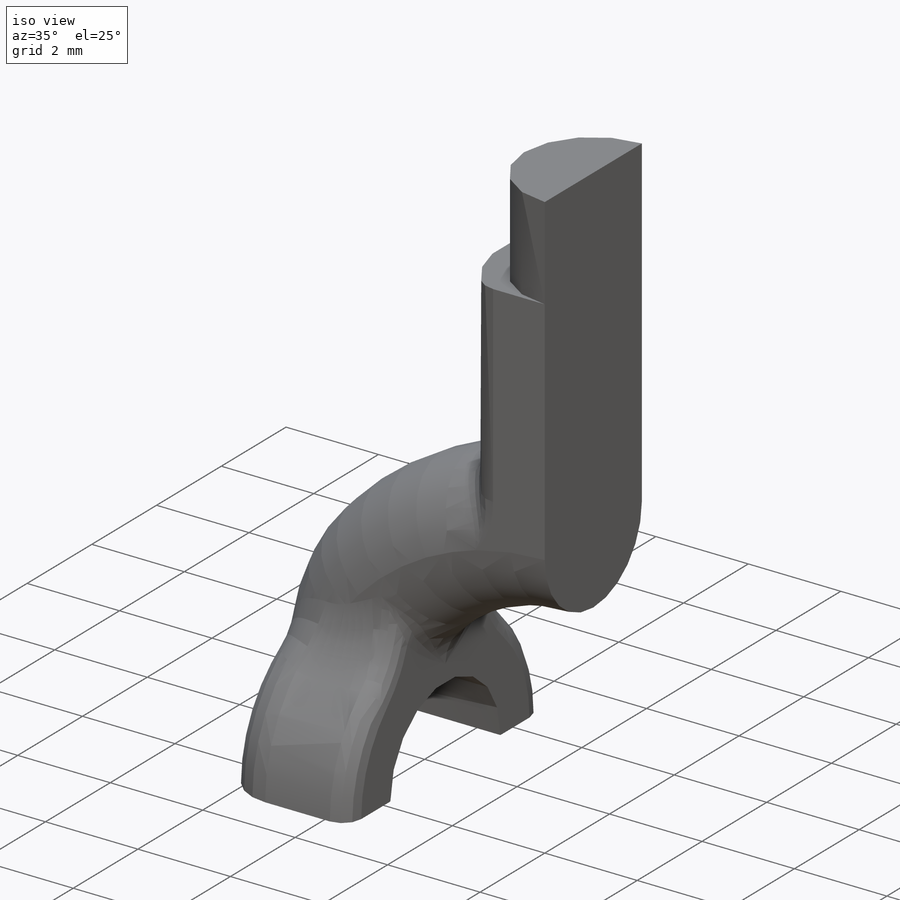
[diagram: iso view]
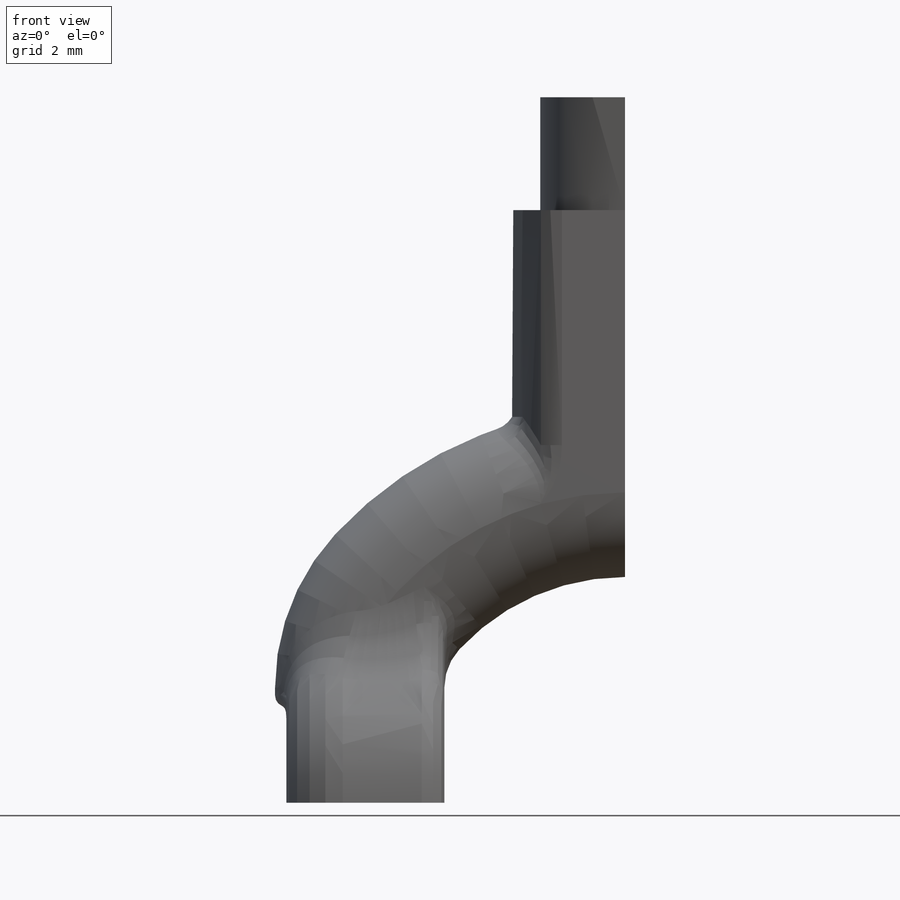
[diagram: front view]
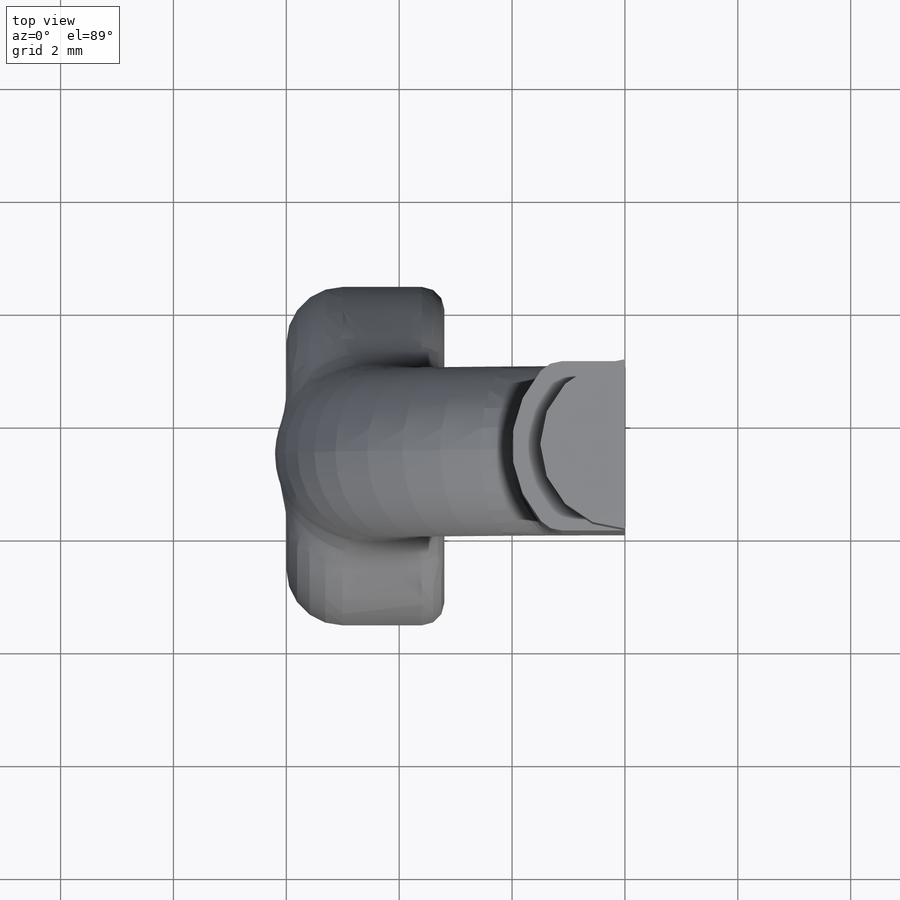
[diagram: top view]
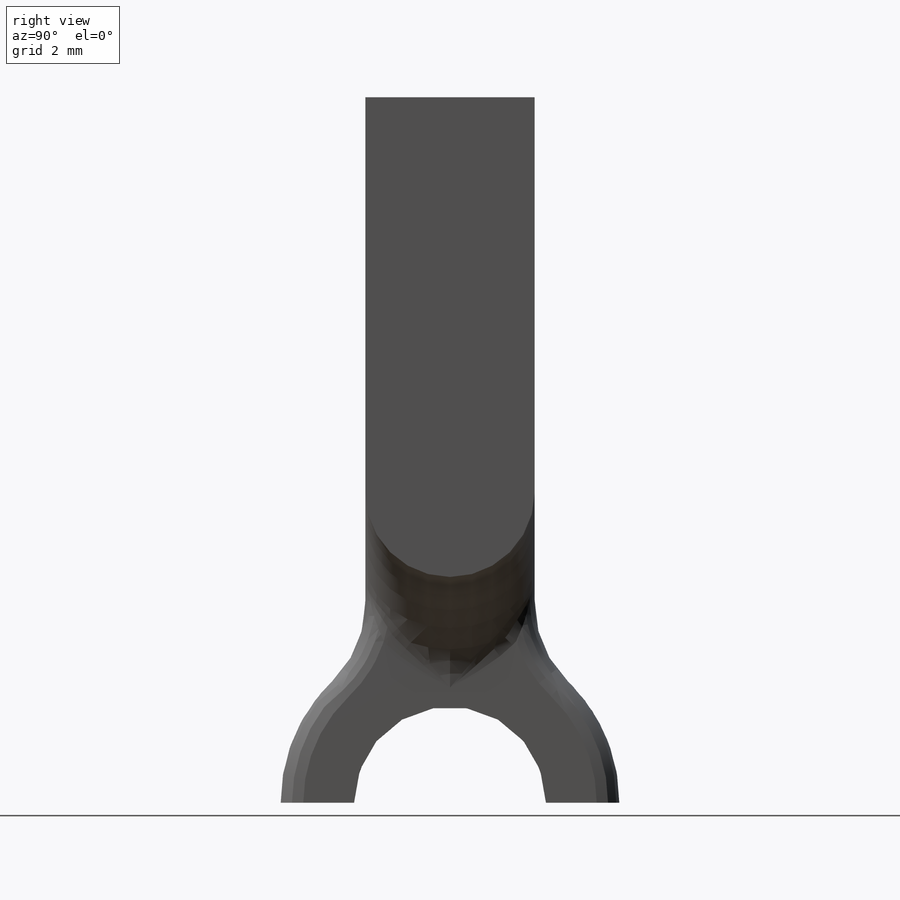
[diagram: right view]
SOLIDWORKS PART (.sldprt)
format: sldprt  version: not decoded by parser v0  size: 661,504 bytes
history: native  units: mm
features: sketch x8, fillet x8, extrude x5, cut_extrude x3, material x1 (+12 scaffold rows collapsed)
feature tree (37):
  scaffold x12  (default folders/planes/origin — collapsed)
  material  "Material <not specified>"
  sketch  "Sketch1"  dims[c1.D2=3.0mm c1.D3=1.0mm c1.D5=4.0mm c1.D6=3.0mm c1.D1=0.2mm c2.D2=0.75mm c2.D4=3.0mm]
  extrude  "Boss-Extrude1"  [1 undecoded]
  fillet  "Fillet1"  Radius=1.5mm
  sketch  "Sketch2"  dims[D1=3.0mm]
  extrude  "Boss-Extrude2"  Depth=12.5mm
  sketch  "Sketch3"  dims[D1=0.5mm]
  extrude  "Boss-Extrude3"  [1 undecoded]
  sketch  "Sketch4"  dims[D2=1.5mm D1=0.0mm]
  extrude  "Boss-Extrude5"  Depth=0.2mm
  fillet  "Fillet2"  Radius=2mm
  fillet  "Fillet3"  Radius=1mm
  fillet  "Fillet4"  Radius=1.9mm
  fillet  "Fillet5"  Radius=0.4mm
  sketch  "Sketch5"  dims[D1=0.2mm]
  cut_extrude  "Cut-Extrude1"  [1 undecoded]
  fillet  "Fillet6"  Radius=0.2mm
  sketch  "Sketch7"
  cut_extrude  "Cut-Extrude2"  [1 undecoded]
  sketch  "Sketch8"
  cut_extrude  "Cut-Extrude3"  [1 undecoded]
  fillet  "Fillet7"  Radius=0.5mm
  fillet  "Fillet8"  Radius=0.5mm
  sketch  "Sketch10"  dims[D1=0.0mm]
  extrude  "Boss-Extrude6"  Depth=2mm
decode coverage: 17 of 24 modeling features carry decoded parameters
note: 5 parameter values undecoded
summary: no parameter record found for 5 features
note: suppression state not decoded; provenance and decode notes live in map.json
